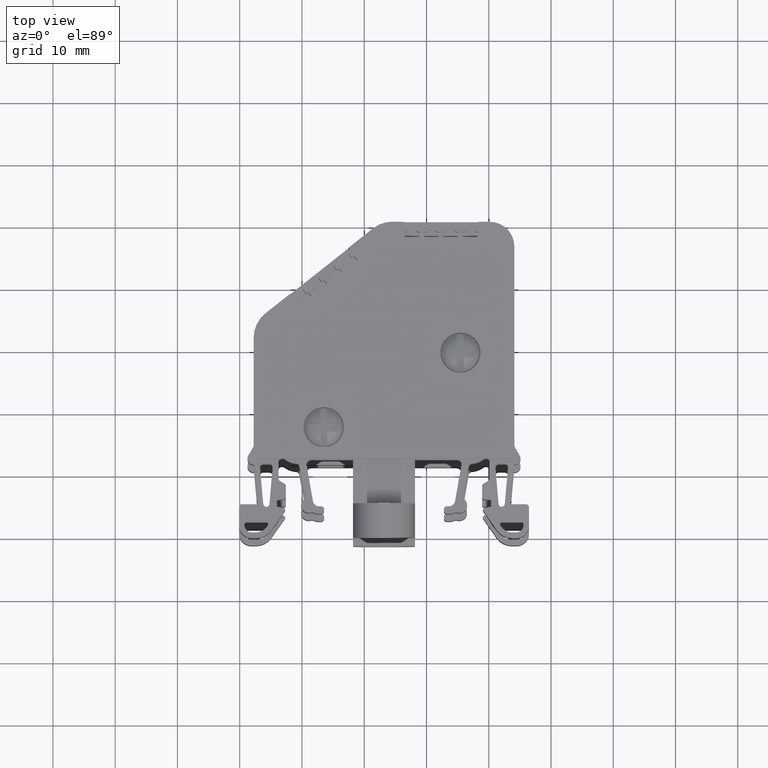
[diagram: clean part render]
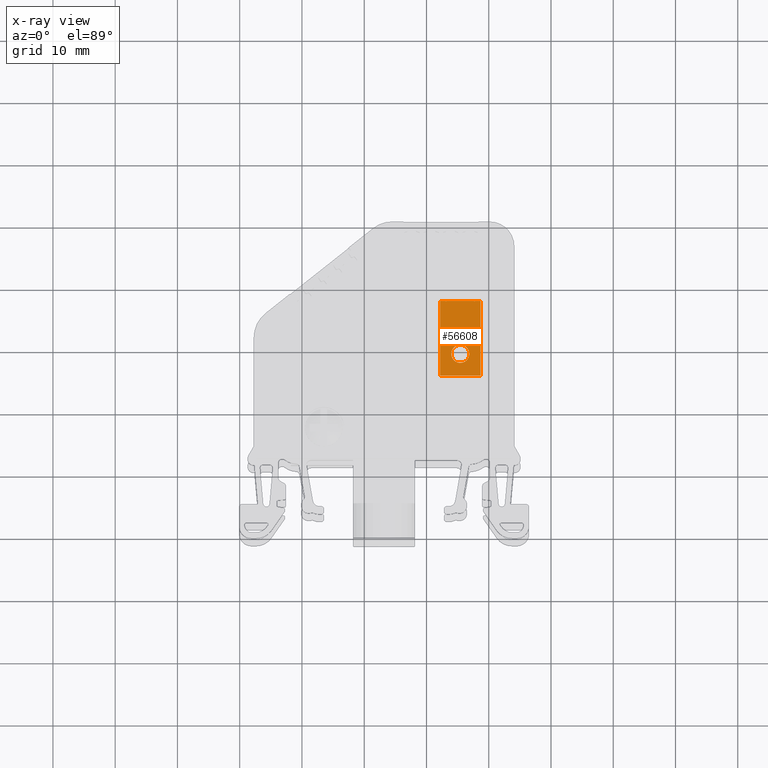
[diagram: x-ray — body ghosted, one internal face saturated and labeled with its STEP entity id]
A machine part, top view, then the same camera in x-ray: the body is ghosted and one INTERNAL B-rep face — a face not visible from any outside direction — is saturated and labeled: STEP entity #56608.
In plain terms, the highlighted planar face has unit normal (0, -0, -1).
Its self-contained STEP definition (entity closure, byte-faithful):
#2047 = VECTOR ( 'NONE', #5385, 1000.000000000000000 ) ;
#2063 = CIRCLE ( 'NONE', #2089, 1.450000000000000000 ) ;
#2089 = AXIS2_PLACEMENT_3D ( 'NONE', #5342, #5329, #5345 ) ;
#2102 = VECTOR ( 'NONE', #5353, 1000.000000000000000 ) ;
#2207 = VECTOR ( 'NONE', #5434, 1000.000000000000000 ) ;
#3537 = LINE ( 'NONE', #3568, #11554 ) ;
#3545 = DIRECTION ( 'NONE',  ( -1.000000000000000000, -7.965850201685501300E-015, 6.345476943569293700E-029 ) ) ;
#3557 = CARTESIAN_POINT ( 'NONE',  ( -37.81639942213222100, 36.89872864396602400, 28.16981950541742900 ) ) ;
#3561 = LINE ( 'NONE', #3557, #11493 ) ;
#3567 = DIRECTION ( 'NONE',  ( -1.000000000000000000, -7.965850201685501300E-015, 6.345476943569293700E-029 ) ) ;
#3568 = CARTESIAN_POINT ( 'NONE',  ( -37.81639942213222100, 36.89872864396602400, 28.16981950541742900 ) ) ;
#3588 = LINE ( 'NONE', #3647, #10485 ) ;
#3643 = DIRECTION ( 'NONE',  ( -1.000000000000000000, -7.965850201685501300E-015, 6.345476943569293700E-029 ) ) ;
#3647 = CARTESIAN_POINT ( 'NONE',  ( -37.81639942213222100, 36.89872864396602400, 28.16981950541742900 ) ) ;
#5329 = DIRECTION ( 'NONE',  ( -3.469446951942109800E-018, 7.965850201685501300E-015, 1.000000000000000000 ) ) ;
#5330 = CARTESIAN_POINT ( 'NONE',  ( -31.31639942213220700, 24.89872864396602700, 28.16981950541752200 ) ) ;
#5342 = CARTESIAN_POINT ( 'NONE',  ( -34.56639942213215000, 28.39872864396604500, 28.16981950541750000 ) ) ;
#5345 = DIRECTION ( 'NONE',  ( 0.0000000000000000000, -1.000000000000000000, 7.178166107490237000E-015 ) ) ;
#5348 = LINE ( 'NONE', #5330, #2102 ) ;
#5353 = DIRECTION ( 'NONE',  ( -0.0000000000000000000, -1.000000000000000000, 7.965850201685501300E-015 ) ) ;
#5385 = DIRECTION ( 'NONE',  ( -1.000000000000000000, -1.372206676878575900E-013, 0.0000000000000000000 ) ) ;
#5395 = CARTESIAN_POINT ( 'NONE',  ( -29.19631147752589900, 24.89872864396543800, 28.16981950541752500 ) ) ;
#5400 = LINE ( 'NONE', #5395, #2047 ) ;
#5426 = CARTESIAN_POINT ( 'NONE',  ( -37.81639942213222100, 36.89872864396554100, 28.16981950541742200 ) ) ;
#5433 = LINE ( 'NONE', #5426, #2207 ) ;
#5434 = DIRECTION ( 'NONE',  ( 7.965850201685501300E-015, -1.000000000000000000, -0.0000000000000000000 ) ) ;
#6429 = CIRCLE ( 'NONE', #6472, 1.450000000000000000 ) ;
#6472 = AXIS2_PLACEMENT_3D ( 'NONE', #23642, #23652, #23622 ) ;
#7729 = CARTESIAN_POINT ( 'NONE',  ( -36.78853044706664100, 36.86359951833943400, 28.16981950541742900 ) ) ;
#7745 = DIRECTION ( 'NONE',  ( -0.2588190451015333600, 0.9659258262893327700, -9.539743315720622500E-014 ) ) ;
#7753 = LINE ( 'NONE', #7729, #14422 ) ;
#7860 = LINE ( 'NONE', #7895, #14477 ) ;
#7863 = CARTESIAN_POINT ( 'NONE',  ( -32.33485557635488300, 36.89872864396605900, 28.16981950541742600 ) ) ;
#7895 = CARTESIAN_POINT ( 'NONE',  ( -32.34426839719737500, 36.86359951833944100, 28.16981950541742900 ) ) ;
#7896 = DIRECTION ( 'NONE',  ( 0.9848077530122478800, 0.1736481776667043200, -1.714996117812848300E-014 ) ) ;
#7904 = LINE ( 'NONE', #7863, #14463 ) ;
#7953 = DIRECTION ( 'NONE',  ( -0.2588190451032529300, -0.9659258262888720200, 9.539743315706648900E-014 ) ) ;
#7958 = LINE ( 'NONE', #7984, #14461 ) ;
#7984 = CARTESIAN_POINT ( 'NONE',  ( -36.98775761857020700, 36.89872864396591700, 28.16981950541742600 ) ) ;
#7998 = DIRECTION ( 'NONE',  ( 0.9848077530120683500, -0.1736481776677224800, 1.714996117829678800E-014 ) ) ;
#10485 = VECTOR ( 'NONE', #3643, 1000.000000000000000 ) ;
#11493 = VECTOR ( 'NONE', #3567, 1000.000000000000000 ) ;
#11554 = VECTOR ( 'NONE', #3545, 1000.000000000000000 ) ;
#11644 = VERTEX_POINT ( 'NONE', #37530 ) ;
#14422 = VECTOR ( 'NONE', #7745, 1000.000000000000100 ) ;
#14461 = VECTOR ( 'NONE', #7998, 1000.000000000000200 ) ;
#14463 = VECTOR ( 'NONE', #7953, 1000.000000000000100 ) ;
#14477 = VECTOR ( 'NONE', #7896, 1000.000000000000200 ) ;
#15024 = DIRECTION ( 'NONE',  ( 3.469446951942109800E-018, -7.965850201685501300E-015, -1.000000000000000000 ) ) ;
#15025 = FACE_OUTER_BOUND ( 'NONE', #40804, .T. ) ;
#15029 = DIRECTION ( 'NONE',  ( 0.0000000000000000000, 1.000000000000000000, -7.965850201685501300E-015 ) ) ;
#15047 = CARTESIAN_POINT ( 'NONE',  ( -37.81639942213212200, 24.89872864396602700, 28.16981950541752200 ) ) ;
#15066 = FACE_BOUND ( 'NONE', #40768, .T. ) ;
#15070 = PLANE ( 'NONE',  #20791 ) ;
#17280 = CARTESIAN_POINT ( 'NONE',  ( -32.34426839719736100, 36.86359951833944100, 28.16981950541742900 ) ) ;
#17315 = CARTESIAN_POINT ( 'NONE',  ( -32.14504122569182000, 36.89872864396606600, 28.16981950541742900 ) ) ;
#17397 = CARTESIAN_POINT ( 'NONE',  ( -36.78853044706664100, 36.86359951833944100, 28.16981950541742900 ) ) ;
#17418 = CARTESIAN_POINT ( 'NONE',  ( -36.79794326790905500, 36.89872864396601700, 28.16981950541742900 ) ) ;
#17483 = CARTESIAN_POINT ( 'NONE',  ( -32.33485557635488300, 36.89872864396604500, 28.16981950541742900 ) ) ;
#20791 = AXIS2_PLACEMENT_3D ( 'NONE', #15047, #15024, #15029 ) ;
#23622 = DIRECTION ( 'NONE',  ( 0.0000000000000000000, -1.000000000000000000, 7.178166107490237000E-015 ) ) ;
#23642 = CARTESIAN_POINT ( 'NONE',  ( -34.56639942213215000, 28.39872864396604500, 28.16981950541750000 ) ) ;
#23652 = DIRECTION ( 'NONE',  ( -3.469446951942109800E-018, 7.965850201685501300E-015, 1.000000000000000000 ) ) ;
#34040 = CARTESIAN_POINT ( 'NONE',  ( -34.56639942213215000, 29.84872864396604400, 28.16981950541749000 ) ) ;
#34050 = CARTESIAN_POINT ( 'NONE',  ( -34.56639942213215000, 26.94872864396604600, 28.16981950541751100 ) ) ;
#34610 = CARTESIAN_POINT ( 'NONE',  ( -31.31639942213215000, 24.89872864396515000, 28.16981950541752500 ) ) ;
#34663 = CARTESIAN_POINT ( 'NONE',  ( -37.81639942213212200, 24.89872864396425500, 28.16981950541749000 ) ) ;
#35452 = CARTESIAN_POINT ( 'NONE',  ( -37.81639942213222100, 36.89872864396586700, 28.16981950541742600 ) ) ;
#35543 = CARTESIAN_POINT ( 'NONE',  ( -31.31639942213220700, 36.89872864396605900, 28.16981950541742600 ) ) ;
#37265 = VERTEX_POINT ( 'NONE', #35452 ) ;
#37308 = VERTEX_POINT ( 'NONE', #35543 ) ;
#37530 = CARTESIAN_POINT ( 'NONE',  ( -36.98775761857155700, 36.89872864396606600, 28.16981950541742900 ) ) ;
#38515 = ORIENTED_EDGE ( 'NONE', *, *, #59203, .F. ) ;
#38524 = ORIENTED_EDGE ( 'NONE', *, *, #59186, .F. ) ;
#38525 = ORIENTED_EDGE ( 'NONE', *, *, #57427, .F. ) ;
#38526 = ORIENTED_EDGE ( 'NONE', *, *, #59189, .F. ) ;
#38529 = ORIENTED_EDGE ( 'NONE', *, *, #57465, .F. ) ;
#38535 = ORIENTED_EDGE ( 'NONE', *, *, #58525, .T. ) ;
#38536 = ORIENTED_EDGE ( 'NONE', *, *, #59214, .T. ) ;
#38543 = ORIENTED_EDGE ( 'NONE', *, *, #57476, .F. ) ;
#38554 = ORIENTED_EDGE ( 'NONE', *, *, #58551, .T. ) ;
#38557 = ORIENTED_EDGE ( 'NONE', *, *, #57486, .F. ) ;
#38561 = ORIENTED_EDGE ( 'NONE', *, *, #53246, .F. ) ;
#38630 = ORIENTED_EDGE ( 'NONE', *, *, #58531, .T. ) ;
#40768 = EDGE_LOOP ( 'NONE', ( #38526, #38561 ) ) ;
#40804 = EDGE_LOOP ( 'NONE', ( #38557, #38535, #38536, #38515, #38524, #38630, #38529, #38543, #38554, #38525 ) ) ;
#43044 = VERTEX_POINT ( 'NONE', #34610 ) ;
#43170 = VERTEX_POINT ( 'NONE', #34663 ) ;
#47265 = VERTEX_POINT ( 'NONE', #34040 ) ;
#47349 = VERTEX_POINT ( 'NONE', #34050 ) ;
#53246 = EDGE_CURVE ( 'NONE', #47265, #47349, #6429, .T. ) ;
#56091 = VERTEX_POINT ( 'NONE', #17397 ) ;
#56092 = VERTEX_POINT ( 'NONE', #17315 ) ;
#56107 = VERTEX_POINT ( 'NONE', #17418 ) ;
#56129 = VERTEX_POINT ( 'NONE', #17280 ) ;
#56138 = VERTEX_POINT ( 'NONE', #17483 ) ;
#56608 = ADVANCED_FACE ( 'NONE', ( #15066, #15025 ), #15070, .F. ) ;
#57427 = EDGE_CURVE ( 'NONE', #56091, #56107, #7753, .T. ) ;
#57465 = EDGE_CURVE ( 'NONE', #56129, #56092, #7860, .T. ) ;
#57476 = EDGE_CURVE ( 'NONE', #56138, #56129, #7904, .T. ) ;
#57486 = EDGE_CURVE ( 'NONE', #11644, #56091, #7958, .T. ) ;
#58525 = EDGE_CURVE ( 'NONE', #11644, #37265, #3537, .T. ) ;
#58531 = EDGE_CURVE ( 'NONE', #37308, #56092, #3561, .T. ) ;
#58551 = EDGE_CURVE ( 'NONE', #56138, #56107, #3588, .T. ) ;
#59186 = EDGE_CURVE ( 'NONE', #37308, #43044, #5348, .T. ) ;
#59189 = EDGE_CURVE ( 'NONE', #47349, #47265, #2063, .T. ) ;
#59203 = EDGE_CURVE ( 'NONE', #43044, #43170, #5400, .T. ) ;
#59214 = EDGE_CURVE ( 'NONE', #37265, #43170, #5433, .T. ) ;